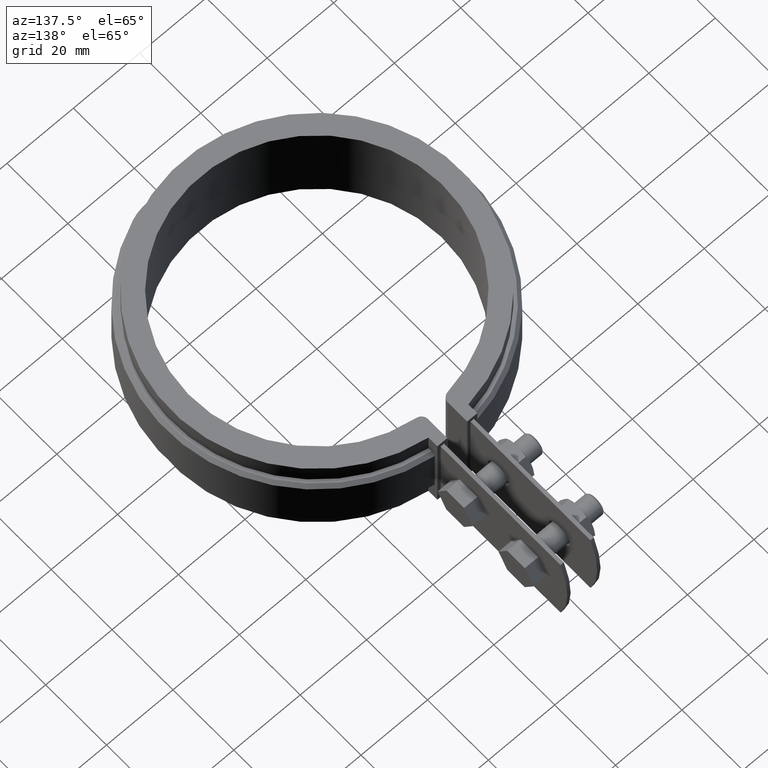
[diagram: clean part render]
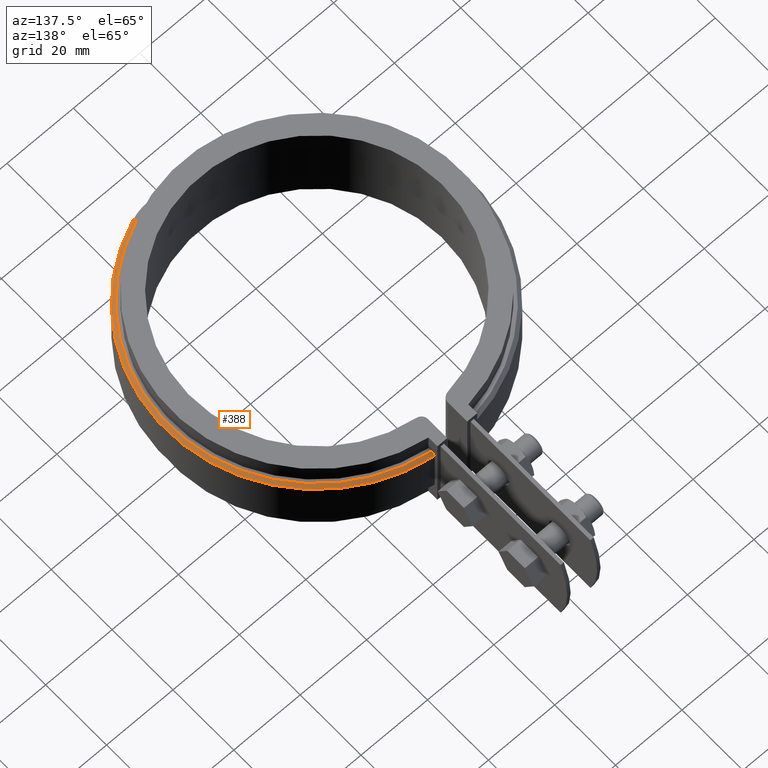
[diagram: same view with one face highlighted and labeled with its STEP entity id]
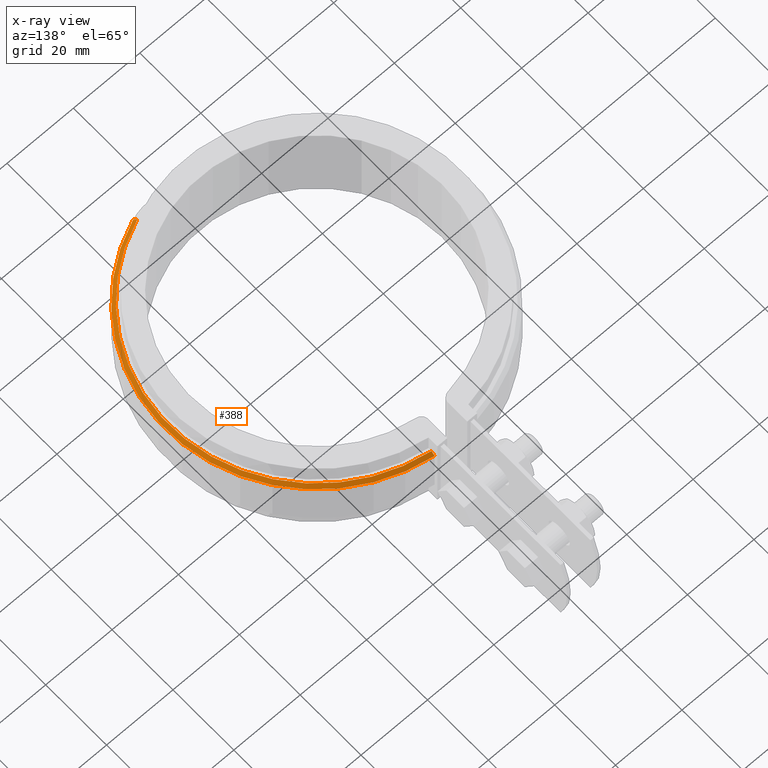
[diagram: x-ray of the same camera — body ghosted, the highlighted face saturated]
A machine part, auxiliary view. The second image highlights one B-rep face of the part: STEP entity #388.
The next image is the same camera in x-ray: the body ghosted, the highlighted face saturated — about 0% of this face is hidden behind the body in this view.
In plain terms, the highlighted conical surface has half-angle 45 deg.
Its self-contained STEP definition (entity closure, byte-faithful):
#388 = ADVANCED_FACE( '', ( #669 ), #670, .T. );
#669 = FACE_OUTER_BOUND( '', #1507, .T. );
#670 = CONICAL_SURFACE( '', #1508, 45.6500000000000, 0.785398163397449 );
#1507 = EDGE_LOOP( '', ( #2958, #2959, #2960, #2961 ) );
#1508 = AXIS2_PLACEMENT_3D( '', #2962, #2963, #2964 );
#2958 = ORIENTED_EDGE( '', *, *, #4181, .F. );
#2959 = ORIENTED_EDGE( '', *, *, #4202, .F. );
#2960 = ORIENTED_EDGE( '', *, *, #4199, .F. );
#2961 = ORIENTED_EDGE( '', *, *, #4203, .F. );
#2962 = CARTESIAN_POINT( '', ( 0.000000000000000, 0.000000000000000, 7.50000000000000 ) );
#2963 = DIRECTION( '', ( 0.000000000000000, 0.000000000000000, -1.00000000000000 ) );
#2964 = DIRECTION( '', ( -1.00000000000000, 0.000000000000000, 0.000000000000000 ) );
#4181 = EDGE_CURVE( '', #4847, #4849, #4850, .T. );
#4199 = EDGE_CURVE( '', #4881, #4882, #4883, .T. );
#4202 = EDGE_CURVE( '', #4882, #4847, #4886, .T. );
#4203 = EDGE_CURVE( '', #4849, #4881, #4887, .F. );
#4847 = VERTEX_POINT( '', #7340 );
#4849 = VERTEX_POINT( '', #7343 );
#4850 = B_SPLINE_CURVE_WITH_KNOTS( '', 3, ( #7344, #7345, #7346, #7347 ), .UNSPECIFIED., .F., .F., ( 4, 4 ), ( 0.000000000000000, 0.00142055609219602 ), .UNSPECIFIED. );
#4881 = VERTEX_POINT( '', #7392 );
#4882 = VERTEX_POINT( '', #7393 );
#4883 = LINE( '', #7394, #7395 );
#4886 = CIRCLE( '', #7398, 44.6500000000000 );
#4887 = CIRCLE( '', #7399, 45.6500000000000 );
#7340 = CARTESIAN_POINT( '', ( 6.00000000000000, 44.2450279692532, 8.50000000000000 ) );
#7343 = CARTESIAN_POINT( '', ( 6.00000000000000, 45.2539777257204, 7.50000000000000 ) );
#7344 = CARTESIAN_POINT( '', ( 6.00000000000000, 44.2450279692532, 8.50000000000000 ) );
#7345 = CARTESIAN_POINT( '', ( 6.00000000000000, 44.5813781116256, 8.16670052728487 ) );
#7346 = CARTESIAN_POINT( '', ( 6.00000000000000, 44.9176939588437, 7.83336644240438 ) );
#7347 = CARTESIAN_POINT( '', ( 6.00000000000000, 45.2539777257204, 7.50000000000000 ) );
#7392 = CARTESIAN_POINT( '', ( 16.2200671388275, -42.6712071778140, 7.50000000000000 ) );
#7393 = CARTESIAN_POINT( '', ( 15.8647535103756, -41.7364600326264, 8.50000000000000 ) );
#7394 = CARTESIAN_POINT( '', ( 16.2200671388275, -42.6712071778140, 7.50000000000000 ) );
#7395 = VECTOR( '', #8382, 1000.00000000000 );
#7398 = AXIS2_PLACEMENT_3D( '', #8389, #8390, #8391 );
#7399 = AXIS2_PLACEMENT_3D( '', #8392, #8393, #8394 );
#8382 = DIRECTION( '', ( -0.251244676126309, 0.660966045056921, 0.707106781186547 ) );
#8389 = CARTESIAN_POINT( '', ( 0.000000000000000, 0.000000000000000, 8.50000000000000 ) );
#8390 = DIRECTION( '', ( 0.000000000000000, 0.000000000000000, 1.00000000000000 ) );
#8391 = DIRECTION( '', ( 1.00000000000000, 0.000000000000000, 0.000000000000000 ) );
#8392 = CARTESIAN_POINT( '', ( 0.000000000000000, 0.000000000000000, 7.50000000000000 ) );
#8393 = DIRECTION( '', ( 0.000000000000000, 0.000000000000000, 1.00000000000000 ) );
#8394 = DIRECTION( '', ( 1.00000000000000, 0.000000000000000, 0.000000000000000 ) );